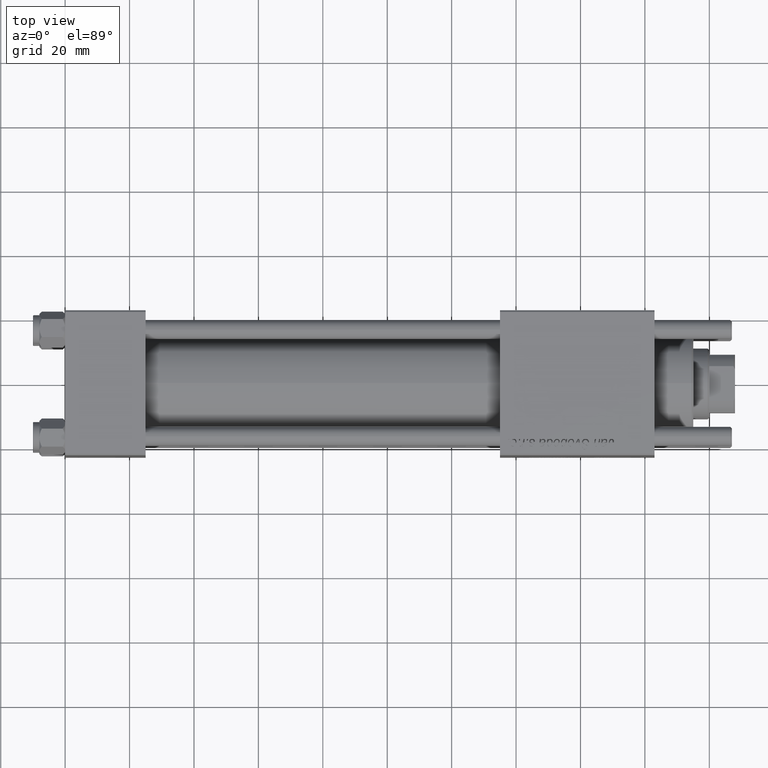
[diagram: clean part render]
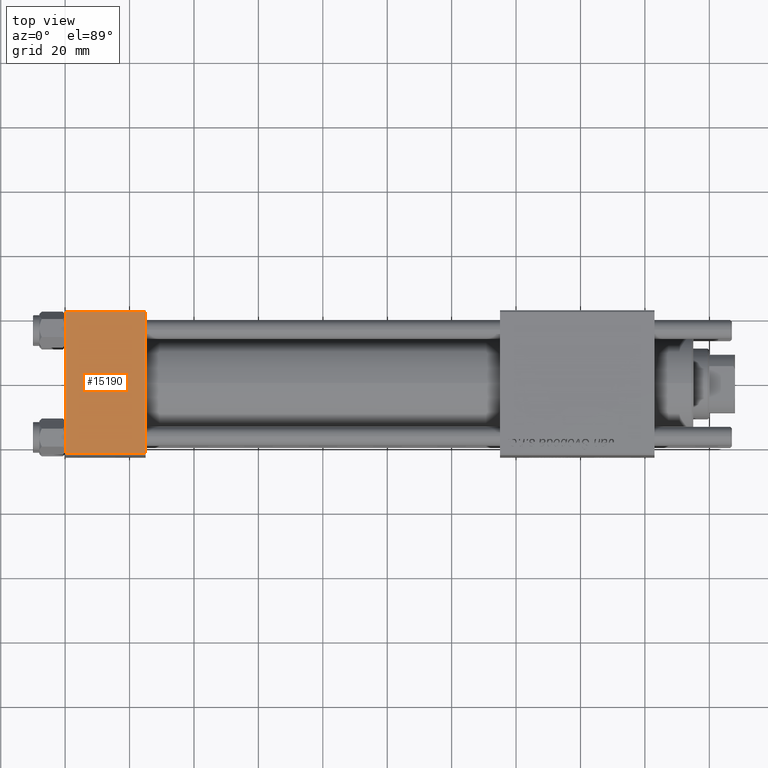
[diagram: same view with one face highlighted and labeled with its STEP entity id]
A machine part, top view. The second image highlights one B-rep face of the part: STEP entity #15190.
In plain terms, the highlighted planar face has unit normal (0, 0, -1).
Its self-contained STEP definition (entity closure, byte-faithful):
#248 = EDGE_CURVE ( 'NONE', #30535, #46362, #8168, .T. ) ;
#676 = CARTESIAN_POINT ( 'NONE',  ( 25.00000000000000000, 22.50000000000000000, 22.50000000000000355 ) ) ;
#1981 = DIRECTION ( 'NONE',  ( 0.000000000000000000, 1.000000000000000000, 7.709882115452476934E-17 ) ) ;
#5745 = DIRECTION ( 'NONE',  ( 0.000000000000000000, 7.709882115452476934E-17, -1.000000000000000000 ) ) ;
#6413 = CARTESIAN_POINT ( 'NONE',  ( 0.000000000000000000, -21.99999999999997868, 22.50000000000000000 ) ) ;
#7883 = CARTESIAN_POINT ( 'NONE',  ( 25.00000000000000000, -21.99999999999999289, 22.50000000000000000 ) ) ;
#8083 = LINE ( 'NONE', #43105, #31529 ) ;
#8168 = LINE ( 'NONE', #7883, #29414 ) ;
#9721 = DIRECTION ( 'NONE',  ( -1.000000000000000000, 0.000000000000000000, 0.000000000000000000 ) ) ;
#12104 = DIRECTION ( 'NONE',  ( 0.000000000000000000, -1.000000000000000000, -7.709882115452476934E-17 ) ) ;
#13959 = CARTESIAN_POINT ( 'NONE',  ( 25.00000000000000000, -21.99999999999997868, 22.50000000000000000 ) ) ;
#15190 = ADVANCED_FACE ( 'NONE', ( #45651 ), #18975, .F. ) ;
#15916 = CARTESIAN_POINT ( 'NONE',  ( 0.000000000000000000, 21.99999999999999289, 22.50000000000000355 ) ) ;
#18975 = PLANE ( 'NONE',  #54489 ) ;
#22140 = CARTESIAN_POINT ( 'NONE',  ( 0.000000000000000000, 21.99999999999999289, 22.50000000000000355 ) ) ;
#23249 = VECTOR ( 'NONE', #9721, 1000.000000000000000 ) ;
#28060 = VECTOR ( 'NONE', #36274, 1000.000000000000000 ) ;
#29414 = VECTOR ( 'NONE', #38590, 1000.000000000000000 ) ;
#30535 = VERTEX_POINT ( 'NONE', #6413 ) ;
#30958 = ORIENTED_EDGE ( 'NONE', *, *, #35051, .T. ) ;
#31529 = VECTOR ( 'NONE', #12104, 1000.000000000000000 ) ;
#33253 = ORIENTED_EDGE ( 'NONE', *, *, #34686, .T. ) ;
#33666 = ORIENTED_EDGE ( 'NONE', *, *, #248, .T. ) ;
#34686 = EDGE_CURVE ( 'NONE', #48101, #39220, #45580, .T. ) ;
#35051 = EDGE_CURVE ( 'NONE', #39220, #30535, #8083, .T. ) ;
#36274 = DIRECTION ( 'NONE',  ( 0.000000000000000000, -1.000000000000000000, -7.709882115452476934E-17 ) ) ;
#38590 = DIRECTION ( 'NONE',  ( 1.000000000000000000, 0.000000000000000000, 0.000000000000000000 ) ) ;
#39220 = VERTEX_POINT ( 'NONE', #22140 ) ;
#41321 = CARTESIAN_POINT ( 'NONE',  ( 25.00000000000000000, 22.50000000000000000, 22.50000000000000355 ) ) ;
#43105 = CARTESIAN_POINT ( 'NONE',  ( 0.000000000000000000, 22.50000000000000000, 22.50000000000000355 ) ) ;
#43622 = EDGE_CURVE ( 'NONE', #48101, #46362, #45163, .T. ) ;
#44979 = CARTESIAN_POINT ( 'NONE',  ( 25.00000000000000000, 21.99999999999999289, 22.50000000000000355 ) ) ;
#45163 = LINE ( 'NONE', #676, #28060 ) ;
#45580 = LINE ( 'NONE', #15916, #23249 ) ;
#45651 = FACE_OUTER_BOUND ( 'NONE', #53403, .T. ) ;
#46362 = VERTEX_POINT ( 'NONE', #13959 ) ;
#48101 = VERTEX_POINT ( 'NONE', #44979 ) ;
#53403 = EDGE_LOOP ( 'NONE', ( #30958, #33666, #56032, #33253 ) ) ;
#54489 = AXIS2_PLACEMENT_3D ( 'NONE', #41321, #5745, #1981 ) ;
#56032 = ORIENTED_EDGE ( 'NONE', *, *, #43622, .F. ) ;